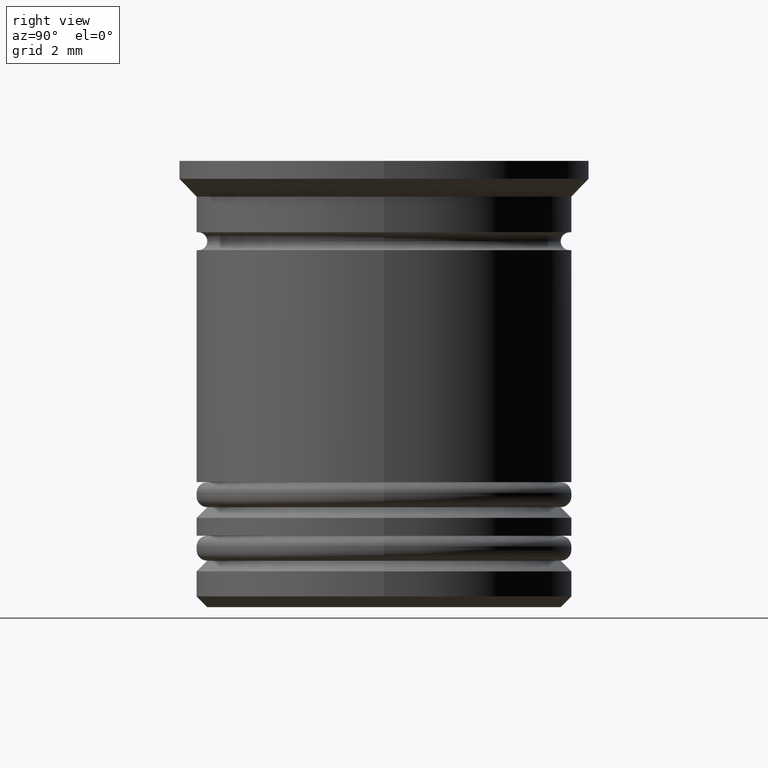
[diagram: clean part render]
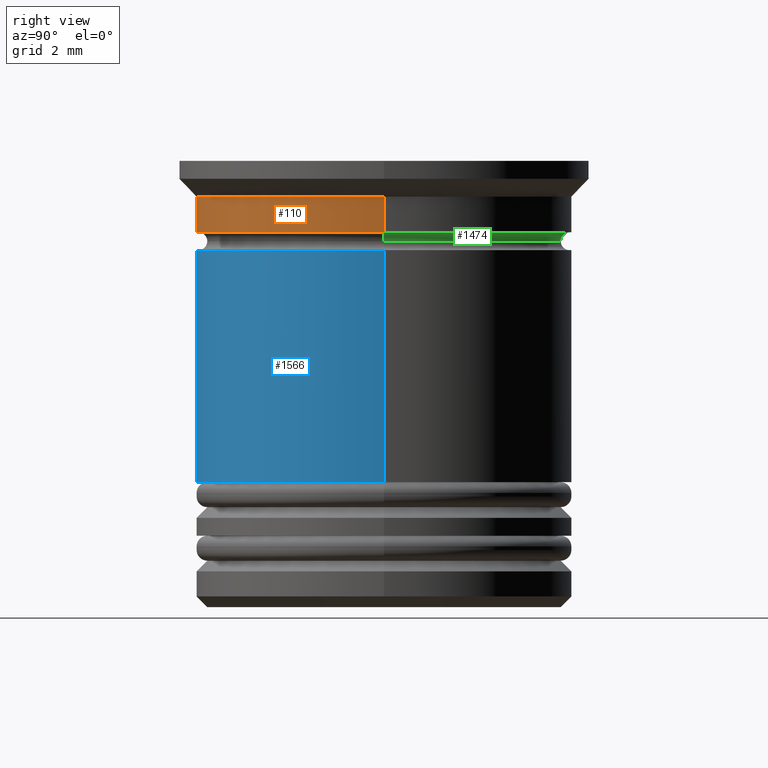
[diagram: same view with three faces highlighted in distinct colors, each labeled with its STEP entity id]
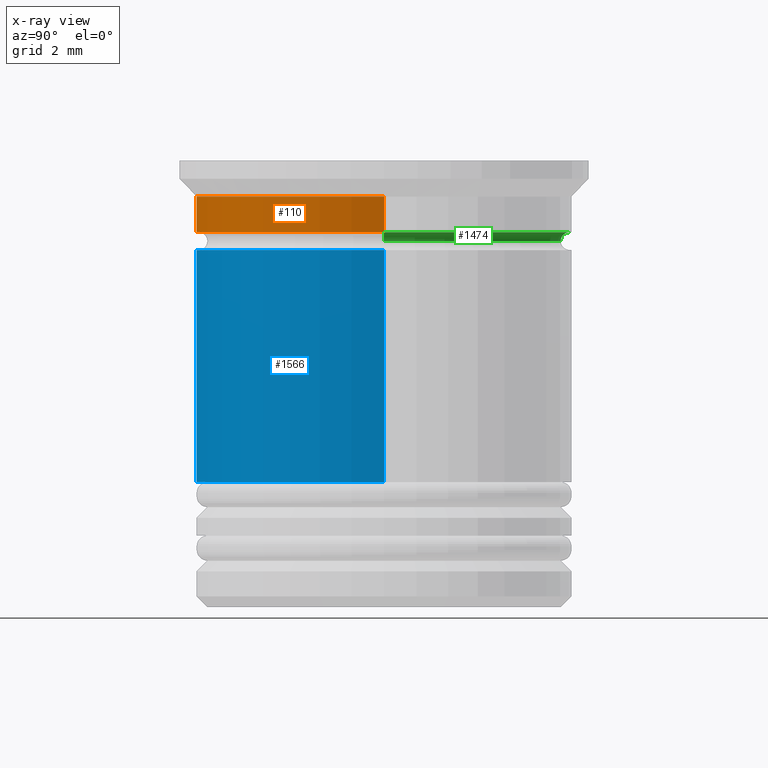
[diagram: x-ray of the same camera — body ghosted, the three highlighted faces saturated]
A machine part, right view with three faces highlighted in distinct colors.
The next image is the same camera in x-ray (body ghosted, the three faces saturated) — at least one of them is partly hidden behind the body in this view.
Their STEP definitions:

[orange] entity #110 — the highlighted cylindrical surface (partial cylindrical patch) has radius 5.25 mm, axis along (-0, -0, 1).
#5 = AXIS2_PLACEMENT_3D ( 'NONE', #625, #323, #1245 ) ;
#7 = DIRECTION ( 'NONE',  ( -0.000000000000000000, -0.000000000000000000, 1.000000000000000000 ) ) ;
#44 = CARTESIAN_POINT ( 'NONE',  ( 5.249999999999999112, 0.000000000000000000, 0.000000000000000000 ) ) ;
#83 = LINE ( 'NONE', #44, #1977 ) ;
#110 = ADVANCED_FACE ( 'NONE', ( #986 ), #1921, .T. ) ;
#183 = CARTESIAN_POINT ( 'NONE',  ( -5.249999999999999112, 6.429395695523603167E-16, 0.000000000000000000 ) ) ;
#280 = VECTOR ( 'NONE', #7, 1000.000000000000000 ) ;
#323 = DIRECTION ( 'NONE',  ( -0.000000000000000000, -0.000000000000000000, 1.000000000000000000 ) ) ;
#401 = EDGE_LOOP ( 'NONE', ( #473, #890, #1357, #1002 ) ) ;
#473 = ORIENTED_EDGE ( 'NONE', *, *, #773, .F. ) ;
#474 = CARTESIAN_POINT ( 'NONE',  ( 5.249999999999999112, 0.000000000000000000, -0.9999999999999997780 ) ) ;
#609 = LINE ( 'NONE', #183, #280 ) ;
#625 = CARTESIAN_POINT ( 'NONE',  ( 0.000000000000000000, 0.000000000000000000, -2.000000000000000888 ) ) ;
#674 = DIRECTION ( 'NONE',  ( -0.000000000000000000, -0.000000000000000000, 1.000000000000000000 ) ) ;
#686 = CIRCLE ( 'NONE', #1661, 5.249999999999999112 ) ;
#735 = CARTESIAN_POINT ( 'NONE',  ( -5.249999999999999112, 6.429395695523603167E-16, -2.000000000000000888 ) ) ;
#773 = EDGE_CURVE ( 'NONE', #1261, #1429, #609, .T. ) ;
#819 = CIRCLE ( 'NONE', #5, 5.249999999999999112 ) ;
#861 = CARTESIAN_POINT ( 'NONE',  ( 5.249999999999999112, 0.000000000000000000, -2.000000000000000888 ) ) ;
#890 = ORIENTED_EDGE ( 'NONE', *, *, #1963, .T. ) ;
#986 = FACE_OUTER_BOUND ( 'NONE', #401, .T. ) ;
#1002 = ORIENTED_EDGE ( 'NONE', *, *, #1531, .F. ) ;
#1003 = DIRECTION ( 'NONE',  ( -0.000000000000000000, -0.000000000000000000, 1.000000000000000000 ) ) ;
#1009 = DIRECTION ( 'NONE',  ( -0.000000000000000000, -0.000000000000000000, 1.000000000000000000 ) ) ;
#1092 = VERTEX_POINT ( 'NONE', #861 ) ;
#1103 = AXIS2_PLACEMENT_3D ( 'NONE', #1448, #1009, #1149 ) ;
#1149 = DIRECTION ( 'NONE',  ( 1.000000000000000000, 0.000000000000000000, 0.000000000000000000 ) ) ;
#1245 = DIRECTION ( 'NONE',  ( 1.000000000000000000, 0.000000000000000000, 0.000000000000000000 ) ) ;
#1261 = VERTEX_POINT ( 'NONE', #735 ) ;
#1357 = ORIENTED_EDGE ( 'NONE', *, *, #1579, .T. ) ;
#1379 = VERTEX_POINT ( 'NONE', #474 ) ;
#1429 = VERTEX_POINT ( 'NONE', #1883 ) ;
#1448 = CARTESIAN_POINT ( 'NONE',  ( 0.000000000000000000, 0.000000000000000000, 0.000000000000000000 ) ) ;
#1531 = EDGE_CURVE ( 'NONE', #1429, #1379, #686, .T. ) ;
#1579 = EDGE_CURVE ( 'NONE', #1092, #1379, #83, .T. ) ;
#1630 = DIRECTION ( 'NONE',  ( 1.000000000000000000, 0.000000000000000000, 0.000000000000000000 ) ) ;
#1661 = AXIS2_PLACEMENT_3D ( 'NONE', #1896, #1003, #1630 ) ;
#1883 = CARTESIAN_POINT ( 'NONE',  ( -5.249999999999999112, 6.429395695523603167E-16, -0.9999999999999997780 ) ) ;
#1896 = CARTESIAN_POINT ( 'NONE',  ( 0.000000000000000000, 0.000000000000000000, -0.9999999999999997780 ) ) ;
#1921 = CYLINDRICAL_SURFACE ( 'NONE', #1103, 5.249999999999999112 ) ;
#1963 = EDGE_CURVE ( 'NONE', #1261, #1092, #819, .T. ) ;
#1977 = VECTOR ( 'NONE', #674, 1000.000000000000000 ) ;

[blue] entity #1566 — the highlighted cylindrical surface (partial cylindrical patch) has radius 5.25 mm, axis along (-0, -0, 1).
#4 = ORIENTED_EDGE ( 'NONE', *, *, #1168, .F. ) ;
#26 = VERTEX_POINT ( 'NONE', #1264 ) ;
#56 = CARTESIAN_POINT ( 'NONE',  ( 0.000000000000000000, 0.000000000000000000, 0.000000000000000000 ) ) ;
#85 = CIRCLE ( 'NONE', #342, 5.250000000000000000 ) ;
#189 = ORIENTED_EDGE ( 'NONE', *, *, #952, .T. ) ;
#219 = VECTOR ( 'NONE', #1553, 1000.000000000000000 ) ;
#226 = DIRECTION ( 'NONE',  ( -0.000000000000000000, -0.000000000000000000, 1.000000000000000000 ) ) ;
#266 = VERTEX_POINT ( 'NONE', #1137 ) ;
#342 = AXIS2_PLACEMENT_3D ( 'NONE', #659, #226, #843 ) ;
#374 = DIRECTION ( 'NONE',  ( -0.000000000000000000, -0.000000000000000000, 1.000000000000000000 ) ) ;
#404 = CIRCLE ( 'NONE', #1219, 5.249999999999999112 ) ;
#532 = VERTEX_POINT ( 'NONE', #975 ) ;
#579 = EDGE_CURVE ( 'NONE', #266, #532, #940, .T. ) ;
#644 = CARTESIAN_POINT ( 'NONE',  ( 5.249999999999999112, 0.000000000000000000, 0.000000000000000000 ) ) ;
#659 = CARTESIAN_POINT ( 'NONE',  ( 0.000000000000000000, 0.000000000000000000, -9.000000000000001776 ) ) ;
#716 = DIRECTION ( 'NONE',  ( -0.000000000000000000, -0.000000000000000000, 1.000000000000000000 ) ) ;
#741 = CARTESIAN_POINT ( 'NONE',  ( -5.249999999999999112, 6.429395695523603167E-16, -2.499999999999998668 ) ) ;
#843 = DIRECTION ( 'NONE',  ( 1.000000000000000000, 0.000000000000000000, 0.000000000000000000 ) ) ;
#856 = DIRECTION ( 'NONE',  ( -0.000000000000000000, -0.000000000000000000, 1.000000000000000000 ) ) ;
#873 = LINE ( 'NONE', #1961, #1479 ) ;
#929 = EDGE_CURVE ( 'NONE', #1713, #532, #404, .T. ) ;
#940 = LINE ( 'NONE', #644, #219 ) ;
#952 = EDGE_CURVE ( 'NONE', #26, #266, #85, .T. ) ;
#975 = CARTESIAN_POINT ( 'NONE',  ( 5.249999999999999112, 0.000000000000000000, -2.499999999999998668 ) ) ;
#1137 = CARTESIAN_POINT ( 'NONE',  ( 5.250000000000000000, 0.000000000000000000, -9.000000000000001776 ) ) ;
#1168 = EDGE_CURVE ( 'NONE', #26, #1713, #873, .T. ) ;
#1219 = AXIS2_PLACEMENT_3D ( 'NONE', #1774, #374, #1296 ) ;
#1264 = CARTESIAN_POINT ( 'NONE',  ( -5.250000000000000000, 6.429395695523604153E-16, -9.000000000000001776 ) ) ;
#1296 = DIRECTION ( 'NONE',  ( 1.000000000000000000, 0.000000000000000000, 0.000000000000000000 ) ) ;
#1365 = AXIS2_PLACEMENT_3D ( 'NONE', #56, #856, #1473 ) ;
#1417 = ORIENTED_EDGE ( 'NONE', *, *, #579, .T. ) ;
#1426 = CYLINDRICAL_SURFACE ( 'NONE', #1365, 5.249999999999999112 ) ;
#1473 = DIRECTION ( 'NONE',  ( 1.000000000000000000, 0.000000000000000000, 0.000000000000000000 ) ) ;
#1479 = VECTOR ( 'NONE', #716, 1000.000000000000000 ) ;
#1483 = ORIENTED_EDGE ( 'NONE', *, *, #929, .F. ) ;
#1553 = DIRECTION ( 'NONE',  ( -0.000000000000000000, -0.000000000000000000, 1.000000000000000000 ) ) ;
#1566 = ADVANCED_FACE ( 'NONE', ( #1924 ), #1426, .T. ) ;
#1713 = VERTEX_POINT ( 'NONE', #741 ) ;
#1774 = CARTESIAN_POINT ( 'NONE',  ( 0.000000000000000000, 0.000000000000000000, -2.499999999999998668 ) ) ;
#1842 = EDGE_LOOP ( 'NONE', ( #4, #189, #1417, #1483 ) ) ;
#1924 = FACE_OUTER_BOUND ( 'NONE', #1842, .T. ) ;
#1961 = CARTESIAN_POINT ( 'NONE',  ( -5.249999999999999112, 6.429395695523603167E-16, 0.000000000000000000 ) ) ;

[green] entity #1474 — the highlighted toroidal blend (fillet) surface has major radius 5.2 mm and minor (blend) radius 0.25 mm.
#41 = CARTESIAN_POINT ( 'NONE',  ( -5.200000000000000178, 6.368163355566236381E-16, -2.000000000000000444 ) ) ;
#46 = ORIENTED_EDGE ( 'NONE', *, *, #1928, .T. ) ;
#131 = DIRECTION ( 'NONE',  ( 1.224646799147353207E-16, 1.000000000000000000, 0.000000000000000000 ) ) ;
#148 = AXIS2_PLACEMENT_3D ( 'NONE', #1339, #131, #1650 ) ;
#260 = ORIENTED_EDGE ( 'NONE', *, *, #1117, .F. ) ;
#277 = DIRECTION ( 'NONE',  ( -0.000000000000000000, -0.000000000000000000, 1.000000000000000000 ) ) ;
#334 = AXIS2_PLACEMENT_3D ( 'NONE', #1453, #682, #551 ) ;
#423 = CARTESIAN_POINT ( 'NONE',  ( 0.000000000000000000, 0.000000000000000000, -2.000000000000000444 ) ) ;
#481 = CARTESIAN_POINT ( 'NONE',  ( 5.200000000000000178, 0.000000000000000000, -2.000000000000000444 ) ) ;
#551 = DIRECTION ( 'NONE',  ( 1.000000000000000000, 0.000000000000000000, 0.000000000000000000 ) ) ;
#589 = DIRECTION ( 'NONE',  ( 0.000000000000000000, 0.000000000000000000, -1.000000000000000000 ) ) ;
#593 = ORIENTED_EDGE ( 'NONE', *, *, #1330, .T. ) ;
#600 = CARTESIAN_POINT ( 'NONE',  ( 5.200000000000000178, 0.000000000000000000, -2.250000000000000000 ) ) ;
#638 = CARTESIAN_POINT ( 'NONE',  ( 4.950000000000000178, 0.000000000000000000, -2.250000000000000000 ) ) ;
#651 = VERTEX_POINT ( 'NONE', #1958 ) ;
#660 = DIRECTION ( 'NONE',  ( -0.000000000000000000, -0.000000000000000000, 1.000000000000000000 ) ) ;
#682 = DIRECTION ( 'NONE',  ( -0.000000000000000000, -0.000000000000000000, 1.000000000000000000 ) ) ;
#688 = AXIS2_PLACEMENT_3D ( 'NONE', #836, #660, #788 ) ;
#752 = CIRCLE ( 'NONE', #688, 4.950000000000000178 ) ;
#788 = DIRECTION ( 'NONE',  ( 1.000000000000000000, 0.000000000000000000, 0.000000000000000000 ) ) ;
#836 = CARTESIAN_POINT ( 'NONE',  ( 0.000000000000000000, 0.000000000000000000, -2.250000000000000000 ) ) ;
#862 = CIRCLE ( 'NONE', #148, 0.2499999999999993616 ) ;
#988 = TOROIDAL_SURFACE ( 'NONE', #334, 5.200000000000000178, 0.2499999999999993616 ) ;
#1055 = EDGE_LOOP ( 'NONE', ( #593, #46, #260, #1278 ) ) ;
#1088 = EDGE_CURVE ( 'NONE', #1980, #1897, #1959, .T. ) ;
#1117 = EDGE_CURVE ( 'NONE', #1897, #651, #862, .T. ) ;
#1159 = AXIS2_PLACEMENT_3D ( 'NONE', #423, #277, #1519 ) ;
#1165 = FACE_OUTER_BOUND ( 'NONE', #1055, .T. ) ;
#1220 = DIRECTION ( 'NONE',  ( 0.000000000000000000, -1.000000000000000000, 0.000000000000000000 ) ) ;
#1278 = ORIENTED_EDGE ( 'NONE', *, *, #1088, .F. ) ;
#1330 = EDGE_CURVE ( 'NONE', #1980, #1388, #1371, .T. ) ;
#1339 = CARTESIAN_POINT ( 'NONE',  ( -5.200000000000000178, 6.368163355566236381E-16, -2.250000000000000000 ) ) ;
#1371 = CIRCLE ( 'NONE', #1895, 0.2499999999999993616 ) ;
#1388 = VERTEX_POINT ( 'NONE', #638 ) ;
#1453 = CARTESIAN_POINT ( 'NONE',  ( 0.000000000000000000, 0.000000000000000000, -2.250000000000000000 ) ) ;
#1474 = ADVANCED_FACE ( 'NONE', ( #1165 ), #988, .F. ) ;
#1519 = DIRECTION ( 'NONE',  ( 1.000000000000000000, 0.000000000000000000, 0.000000000000000000 ) ) ;
#1650 = DIRECTION ( 'NONE',  ( -1.000000000000000000, 1.224646799147353700E-16, 0.000000000000000000 ) ) ;
#1895 = AXIS2_PLACEMENT_3D ( 'NONE', #600, #1220, #589 ) ;
#1897 = VERTEX_POINT ( 'NONE', #41 ) ;
#1928 = EDGE_CURVE ( 'NONE', #1388, #651, #752, .T. ) ;
#1958 = CARTESIAN_POINT ( 'NONE',  ( -4.950000000000000178, 6.062001655779398511E-16, -2.250000000000000000 ) ) ;
#1959 = CIRCLE ( 'NONE', #1159, 5.200000000000000178 ) ;
#1980 = VERTEX_POINT ( 'NONE', #481 ) ;